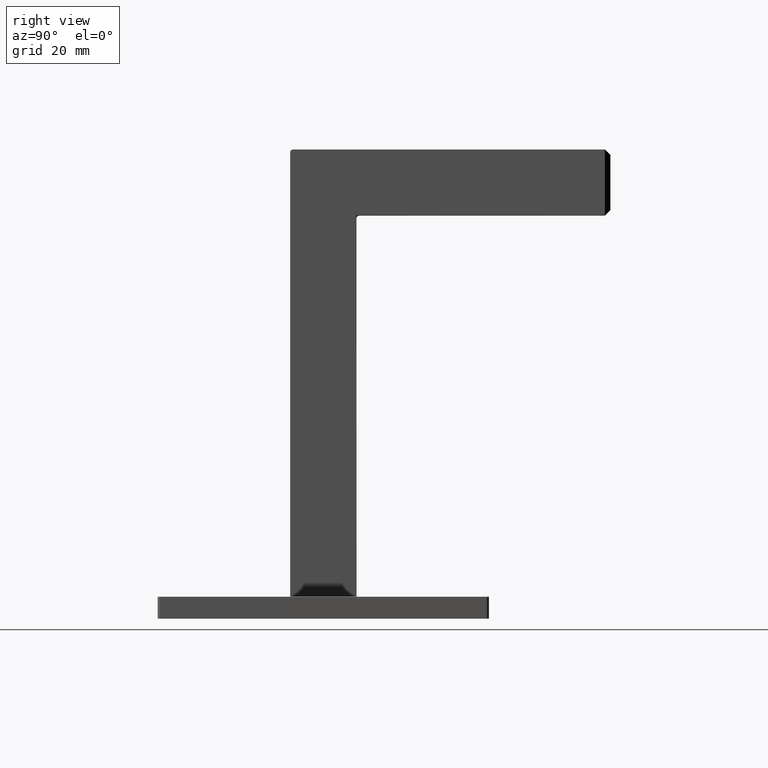
[diagram: clean part render]
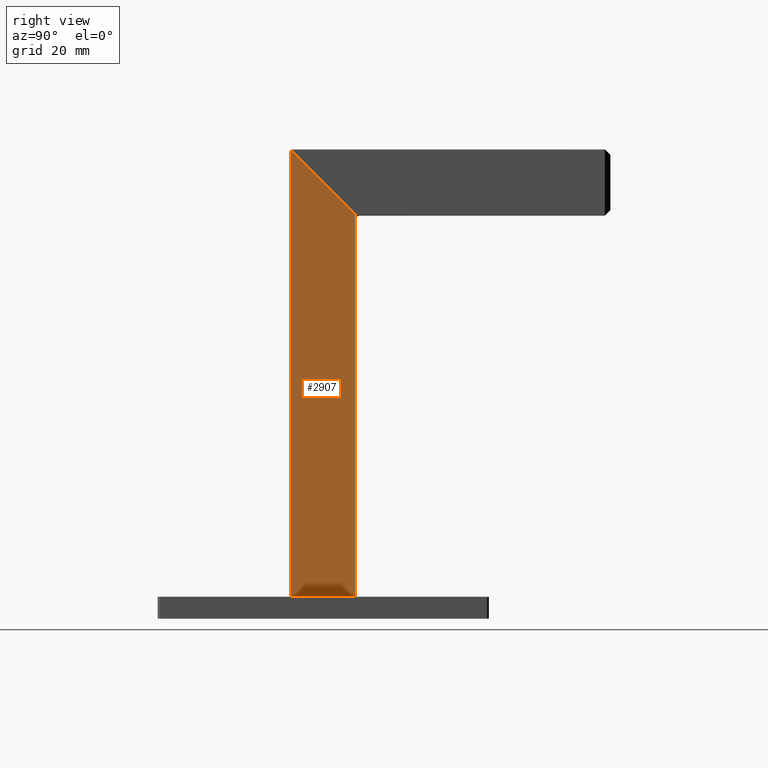
[diagram: same view with one face highlighted and labeled with its STEP entity id]
A machine part, right view. The second image highlights one B-rep face of the part: STEP entity #2907.
In plain terms, the highlighted planar face has unit normal (-1, 0, 0).
Its self-contained STEP definition (entity closure, byte-faithful):
#638 = VECTOR ( 'NONE', #897, 1000.000000000000000 ) ;
#668 = VERTEX_POINT ( 'NONE', #9168 ) ;
#897 = DIRECTION ( 'NONE',  ( -0.000000000000000000, 1.224646799147353207E-16, -1.000000000000000000 ) ) ;
#1195 = DIRECTION ( 'NONE',  ( -1.445602896647339163E-16, -1.000000000000000000, 0.000000000000000000 ) ) ;
#1402 = CARTESIAN_POINT ( 'NONE',  ( 5.999999999999998224, -5.900000000000012790, 84.50000000000001421 ) ) ;
#1479 = DIRECTION ( 'NONE',  ( 0.000000000000000000, 1.951563910473919656E-14, 1.000000000000000000 ) ) ;
#1639 = CIRCLE ( 'NONE', #3169, 0.3999999999999975797 ) ;
#1718 = AXIS2_PLACEMENT_3D ( 'NONE', #4294, #6682, #1195 ) ;
#1994 = EDGE_LOOP ( 'NONE', ( #8296, #5225, #8668, #2962, #4283 ) ) ;
#2362 = VERTEX_POINT ( 'NONE', #1402 ) ;
#2630 = CARTESIAN_POINT ( 'NONE',  ( 6.000000000000000000, 5.899999999999997691, -1.224646799147353115E-17 ) ) ;
#2691 = LINE ( 'NONE', #4712, #638 ) ;
#2798 = VERTEX_POINT ( 'NONE', #7882 ) ;
#2859 = EDGE_CURVE ( 'NONE', #668, #6618, #6389, .T. ) ;
#2907 = ADVANCED_FACE ( 'NONE', ( #3581 ), #4260, .F. ) ;
#2962 = ORIENTED_EDGE ( 'NONE', *, *, #5354, .T. ) ;
#2995 = VECTOR ( 'NONE', #7392, 1000.000000000000000 ) ;
#3169 = AXIS2_PLACEMENT_3D ( 'NONE', #6075, #6005, #1479 ) ;
#3581 = FACE_OUTER_BOUND ( 'NONE', #1994, .T. ) ;
#3655 = DIRECTION ( 'NONE',  ( 1.445602896647339163E-16, 1.000000000000000000, -0.000000000000000000 ) ) ;
#3868 = VECTOR ( 'NONE', #3655, 1000.000000000000000 ) ;
#4164 = DIRECTION ( 'NONE',  ( 1.022195611122249302E-16, 0.7071067811865475727, -0.7071067811865474617 ) ) ;
#4260 = PLANE ( 'NONE',  #1718 ) ;
#4268 = EDGE_CURVE ( 'NONE', #2362, #2798, #2691, .T. ) ;
#4283 = ORIENTED_EDGE ( 'NONE', *, *, #2859, .T. ) ;
#4294 = CARTESIAN_POINT ( 'NONE',  ( 6.000000000000000000, 5.999999999999998224, 0.000000000000000000 ) ) ;
#4712 = CARTESIAN_POINT ( 'NONE',  ( 5.999999999999998224, -5.900000000000002132, -1.457329690985350393E-15 ) ) ;
#4828 = EDGE_CURVE ( 'NONE', #7348, #6618, #7367, .T. ) ;
#4954 = CARTESIAN_POINT ( 'NONE',  ( 6.000000000000005329, 42.49999999999999289, 36.50000000000000000 ) ) ;
#5225 = ORIENTED_EDGE ( 'NONE', *, *, #7571, .T. ) ;
#5354 = EDGE_CURVE ( 'NONE', #2798, #668, #5453, .T. ) ;
#5453 = LINE ( 'NONE', #6717, #3868 ) ;
#5787 = VECTOR ( 'NONE', #4164, 1000.000000000000000 ) ;
#6005 = DIRECTION ( 'NONE',  ( 1.000000000000000000, -0.000000000000000000, 1.445602896647339163E-16 ) ) ;
#6075 = CARTESIAN_POINT ( 'NONE',  ( 5.999999999999998224, -5.500000000000011546, 84.50000000000000000 ) ) ;
#6389 = LINE ( 'NONE', #2630, #2995 ) ;
#6618 = VERTEX_POINT ( 'NONE', #9256 ) ;
#6682 = DIRECTION ( 'NONE',  ( -1.000000000000000000, 1.445602896647339163E-16, 1.770352960217306030E-32 ) ) ;
#6717 = CARTESIAN_POINT ( 'NONE',  ( 6.000000000000000000, 5.999999999999998224, 4.100000000000000533 ) ) ;
#7348 = VERTEX_POINT ( 'NONE', #9787 ) ;
#7367 = LINE ( 'NONE', #4954, #5787 ) ;
#7392 = DIRECTION ( 'NONE',  ( 0.000000000000000000, -1.224646799147353207E-16, 1.000000000000000000 ) ) ;
#7571 = EDGE_CURVE ( 'NONE', #7348, #2362, #1639, .T. ) ;
#7882 = CARTESIAN_POINT ( 'NONE',  ( 5.999999999999998224, -5.900000000000002132, 4.100000000000000533 ) ) ;
#8296 = ORIENTED_EDGE ( 'NONE', *, *, #4828, .F. ) ;
#8668 = ORIENTED_EDGE ( 'NONE', *, *, #4268, .T. ) ;
#9168 = CARTESIAN_POINT ( 'NONE',  ( 6.000000000000000000, 5.899999999999997691, 4.100000000000000533 ) ) ;
#9256 = CARTESIAN_POINT ( 'NONE',  ( 6.000000000000000000, 5.899999999999974598, 73.10000000000000853 ) ) ;
#9787 = CARTESIAN_POINT ( 'NONE',  ( 5.999999999999998224, -5.782842712474630886, 84.78284271247461845 ) ) ;